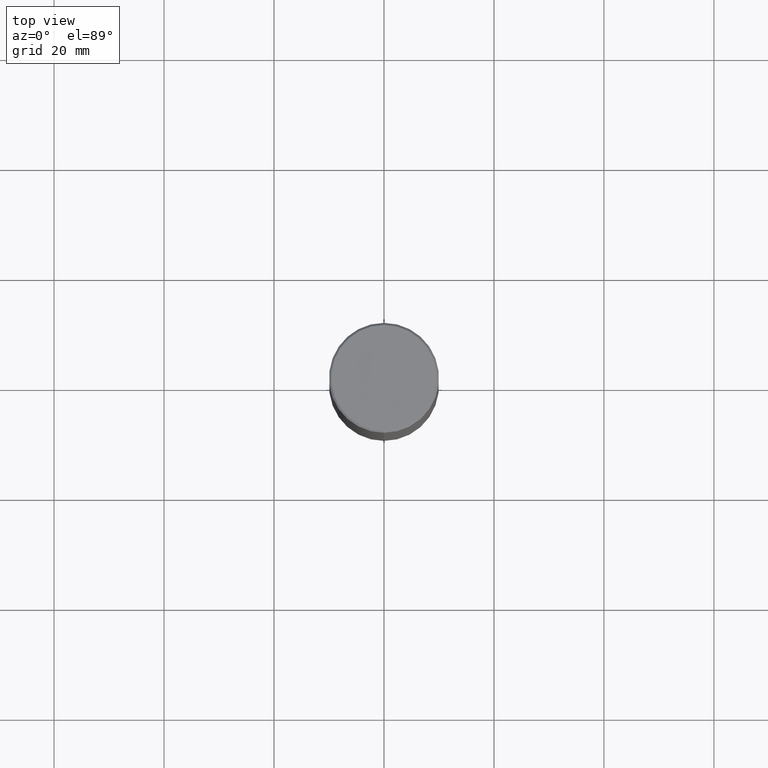
[diagram: clean part render]
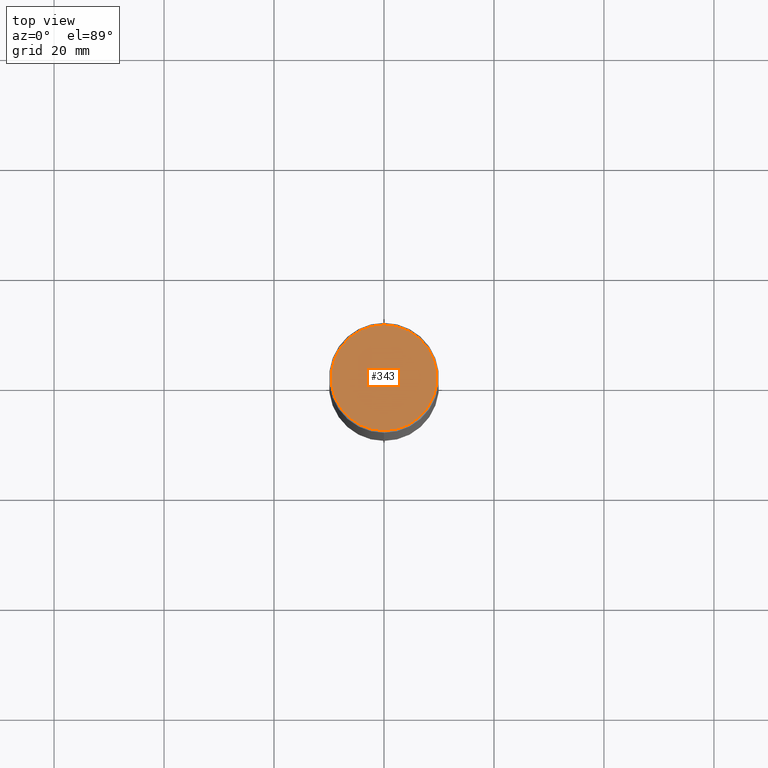
[diagram: same view with one face highlighted and labeled with its STEP entity id]
A machine part, top view. The second image highlights one B-rep face of the part: STEP entity #343.
In plain terms, the highlighted planar face has unit normal (0, -0, -1).
Its self-contained STEP definition (entity closure, byte-faithful):
#47 = AXIS2_PLACEMENT_3D ( 'NONE', #462, #103, #66 ) ;
#48 = DIRECTION ( 'NONE',  ( -2.446619523069192094E-29, 3.489833446770440452E-15, 1.000000000000000000 ) ) ;
#66 = DIRECTION ( 'NONE',  ( -6.982962677686266711E-15, -1.000000000000000000, 3.489833446770440452E-15 ) ) ;
#88 = DIRECTION ( 'NONE',  ( -6.982962677686266711E-15, -1.000000000000000000, 3.489833446770440452E-15 ) ) ;
#95 = AXIS2_PLACEMENT_3D ( 'NONE', #200, #48, #88 ) ;
#103 = DIRECTION ( 'NONE',  ( -2.446619523069192094E-29, 3.489833446770440452E-15, 1.000000000000000000 ) ) ;
#109 = PLANE ( 'NONE',  #270 ) ;
#190 = DIRECTION ( 'NONE',  ( 2.446619523069191814E-29, -3.489833446770440452E-15, -1.000000000000000000 ) ) ;
#193 = CIRCLE ( 'NONE', #47, 0.3787000000000000921 ) ;
#200 = CARTESIAN_POINT ( 'NONE',  ( 9.594726036736904998E-46, -1.368582058627539699E-31, -3.921625715101252830E-17 ) ) ;
#216 = CARTESIAN_POINT ( 'NONE',  ( -2.649524326739365050E-15, -0.3787000000000000921, 1.282383669140953621E-15 ) ) ;
#255 = EDGE_CURVE ( 'NONE', #492, #373, #319, .T. ) ;
#270 = AXIS2_PLACEMENT_3D ( 'NONE', #505, #190, #390 ) ;
#319 = CIRCLE ( 'NONE', #95, 0.3787000000000000921 ) ;
#335 = EDGE_LOOP ( 'NONE', ( #426, #342 ) ) ;
#342 = ORIENTED_EDGE ( 'NONE', *, *, #369, .T. ) ;
#343 = ADVANCED_FACE ( 'NONE', ( #459 ), #109, .F. ) ;
#369 = EDGE_CURVE ( 'NONE', #373, #492, #193, .T. ) ;
#373 = VERTEX_POINT ( 'NONE', #216 ) ;
#383 = CARTESIAN_POINT ( 'NONE',  ( 2.696820186122436926E-15, 0.3787000000000000921, -1.360816183442978678E-15 ) ) ;
#390 = DIRECTION ( 'NONE',  ( 6.982962677686265922E-15, 1.000000000000000000, -3.489833446770440452E-15 ) ) ;
#426 = ORIENTED_EDGE ( 'NONE', *, *, #255, .T. ) ;
#459 = FACE_OUTER_BOUND ( 'NONE', #335, .T. ) ;
#462 = CARTESIAN_POINT ( 'NONE',  ( 9.594726036736904998E-46, -1.368582058627539699E-31, -3.921625715101252830E-17 ) ) ;
#492 = VERTEX_POINT ( 'NONE', #383 ) ;
#505 = CARTESIAN_POINT ( 'NONE',  ( 2.644447966039789847E-15, 0.3787000000000000921, -1.341208054867472266E-15 ) ) ;